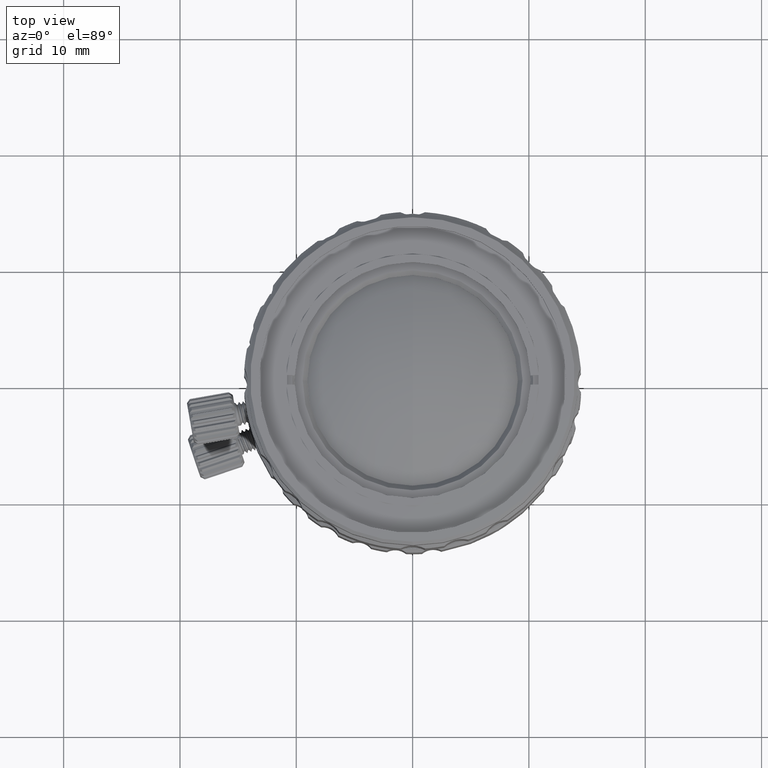
[diagram: clean part render]
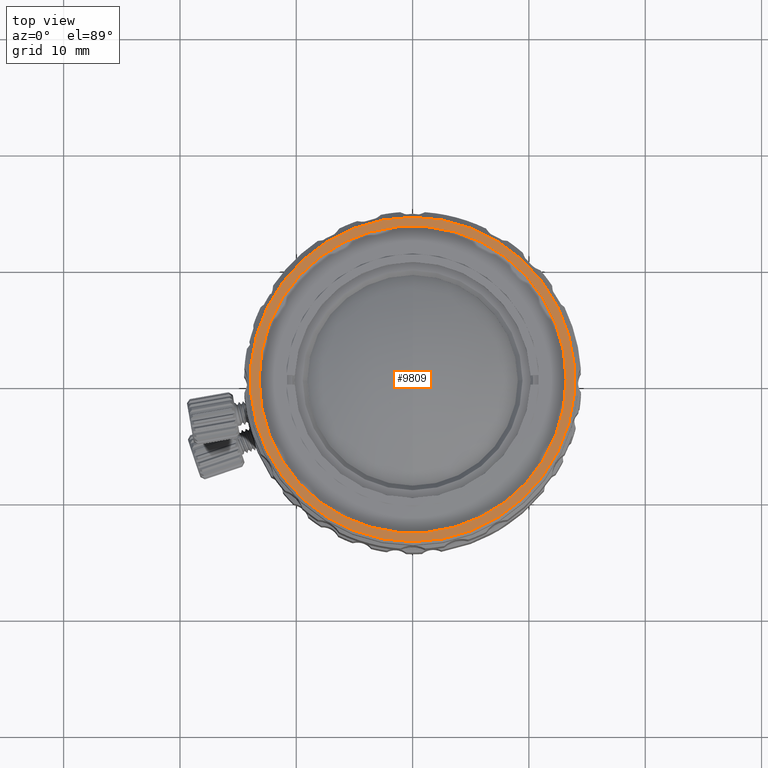
[diagram: same view with one face highlighted and labeled with its STEP entity id]
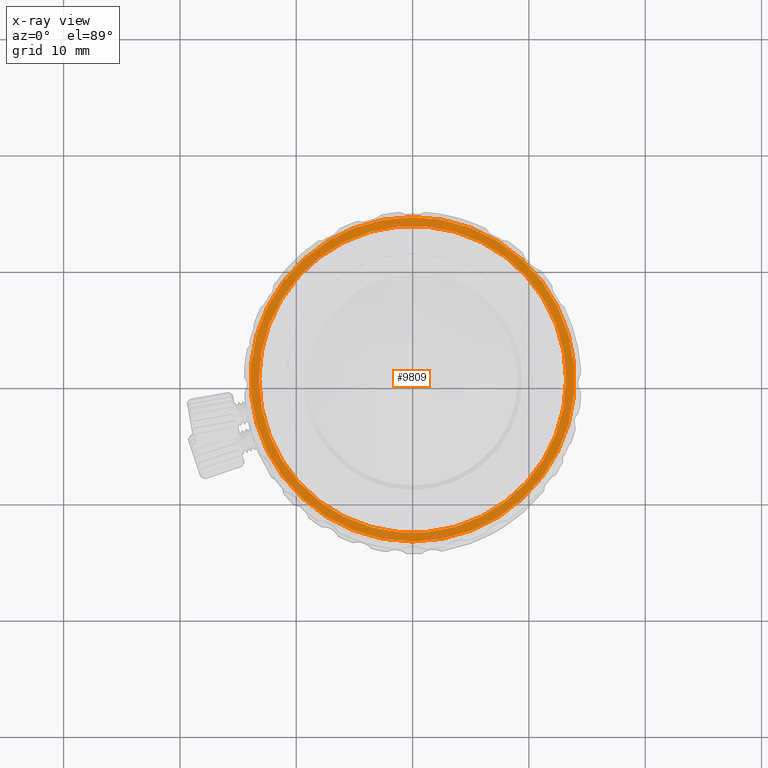
[diagram: x-ray of the same camera — body ghosted, the highlighted face saturated]
A machine part, top view. The second image highlights one B-rep face of the part: STEP entity #9809.
The next image is the same camera in x-ray: the body ghosted, the highlighted face saturated — about 0% of this face is hidden behind the body in this view.
In plain terms, the highlighted planar face has unit normal (0, 0, -1).
Its self-contained STEP definition (entity closure, byte-faithful):
#98 = EDGE_LOOP ( 'NONE', ( #49367, #60734 ) ) ;
#1280 = EDGE_CURVE ( 'NONE', #41517, #13084, #62932, .T. ) ;
#1910 = CARTESIAN_POINT ( 'NONE',  ( -13.19999999999999929, 0.000000000000000000, 37.74000000000000199 ) ) ;
#5505 = CIRCLE ( 'NONE', #58738, 13.19999999999999929 ) ;
#5873 = DIRECTION ( 'NONE',  ( 0.000000000000000000, 0.000000000000000000, -1.000000000000000000 ) ) ;
#7214 = CARTESIAN_POINT ( 'NONE',  ( 13.19999999999999929, -1.616533774874506204E-15, 37.74000000000000199 ) ) ;
#9809 = ADVANCED_FACE ( 'NONE', ( #20499, #42003 ), #62832, .F. ) ;
#13084 = VERTEX_POINT ( 'NONE', #57914 ) ;
#14167 = DIRECTION ( 'NONE',  ( 0.000000000000000000, 0.000000000000000000, -1.000000000000000000 ) ) ;
#15633 = CARTESIAN_POINT ( 'NONE',  ( 0.000000000000000000, 0.000000000000000000, 37.74000000000000199 ) ) ;
#16648 = DIRECTION ( 'NONE',  ( 0.000000000000000000, -1.000000000000000000, 0.000000000000000000 ) ) ;
#16812 = EDGE_LOOP ( 'NONE', ( #17042, #34455 ) ) ;
#17042 = ORIENTED_EDGE ( 'NONE', *, *, #26158, .F. ) ;
#20499 = FACE_OUTER_BOUND ( 'NONE', #16812, .T. ) ;
#21053 = VERTEX_POINT ( 'NONE', #1910 ) ;
#21129 = CARTESIAN_POINT ( 'NONE',  ( -1.726751985222260123E-15, 13.94999998711000089, 37.74000000000000199 ) ) ;
#21282 = EDGE_CURVE ( 'NONE', #21053, #39641, #5505, .T. ) ;
#21865 = AXIS2_PLACEMENT_3D ( 'NONE', #15633, #5873, #16648 ) ;
#23713 = DIRECTION ( 'NONE',  ( 0.000000000000000000, 0.000000000000000000, 1.000000000000000000 ) ) ;
#24528 = CIRCLE ( 'NONE', #34550, 13.94999998711000089 ) ;
#26158 = EDGE_CURVE ( 'NONE', #13084, #41517, #24528, .T. ) ;
#26333 = EDGE_CURVE ( 'NONE', #39641, #21053, #40135, .T. ) ;
#27462 = DIRECTION ( 'NONE',  ( 0.000000000000000000, 0.000000000000000000, 1.000000000000000000 ) ) ;
#31300 = AXIS2_PLACEMENT_3D ( 'NONE', #38568, #27462, #58711 ) ;
#32991 = AXIS2_PLACEMENT_3D ( 'NONE', #45770, #14167, #35358 ) ;
#34455 = ORIENTED_EDGE ( 'NONE', *, *, #1280, .F. ) ;
#34550 = AXIS2_PLACEMENT_3D ( 'NONE', #45898, #68450, #41381 ) ;
#35358 = DIRECTION ( 'NONE',  ( 0.000000000000000000, -1.000000000000000000, 0.000000000000000000 ) ) ;
#38568 = CARTESIAN_POINT ( 'NONE',  ( 0.000000000000000000, 0.000000000000000000, 37.74000000000000199 ) ) ;
#39641 = VERTEX_POINT ( 'NONE', #7214 ) ;
#40135 = CIRCLE ( 'NONE', #31300, 13.19999999999999929 ) ;
#41381 = DIRECTION ( 'NONE',  ( 0.000000000000000000, -1.000000000000000000, 0.000000000000000000 ) ) ;
#41517 = VERTEX_POINT ( 'NONE', #21129 ) ;
#42003 = FACE_BOUND ( 'NONE', #98, .T. ) ;
#45770 = CARTESIAN_POINT ( 'NONE',  ( 0.000000000000000000, 0.000000000000000000, 37.74000000000000199 ) ) ;
#45898 = CARTESIAN_POINT ( 'NONE',  ( 0.000000000000000000, 0.000000000000000000, 37.74000000000000199 ) ) ;
#49367 = ORIENTED_EDGE ( 'NONE', *, *, #21282, .F. ) ;
#57914 = CARTESIAN_POINT ( 'NONE',  ( 0.000000000000000000, -13.94999998711000089, 37.74000000000000199 ) ) ;
#58711 = DIRECTION ( 'NONE',  ( -1.000000000000000000, 0.000000000000000000, 0.000000000000000000 ) ) ;
#58738 = AXIS2_PLACEMENT_3D ( 'NONE', #59821, #23713, #65033 ) ;
#59821 = CARTESIAN_POINT ( 'NONE',  ( 0.000000000000000000, 0.000000000000000000, 37.74000000000000199 ) ) ;
#60734 = ORIENTED_EDGE ( 'NONE', *, *, #26333, .F. ) ;
#62832 = PLANE ( 'NONE',  #21865 ) ;
#62932 = CIRCLE ( 'NONE', #32991, 13.94999998711000089 ) ;
#65033 = DIRECTION ( 'NONE',  ( -1.000000000000000000, 0.000000000000000000, 0.000000000000000000 ) ) ;
#68450 = DIRECTION ( 'NONE',  ( 0.000000000000000000, 0.000000000000000000, -1.000000000000000000 ) ) ;